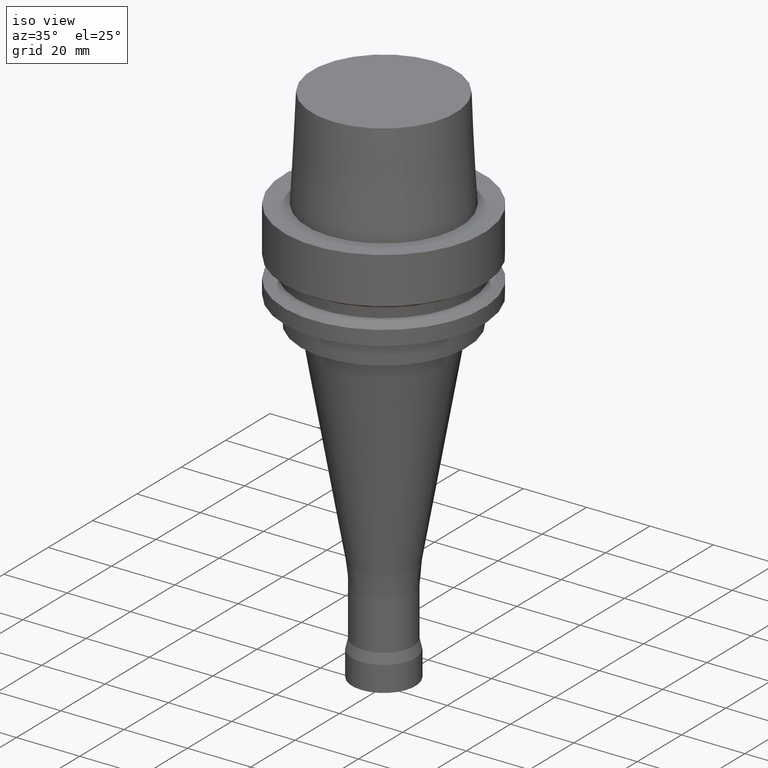
[diagram: clean part render]
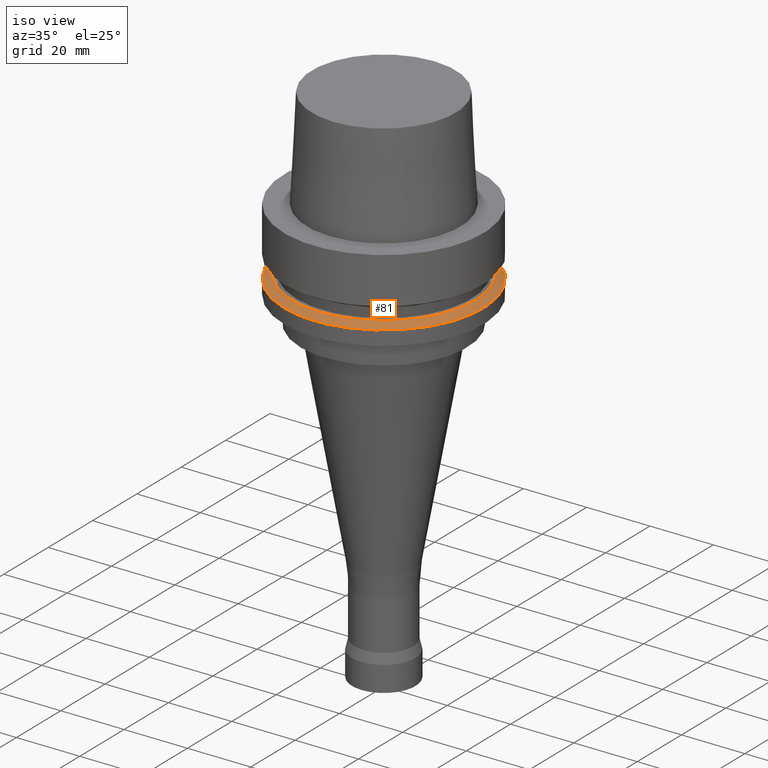
[diagram: same view with one face highlighted and labeled with its STEP entity id]
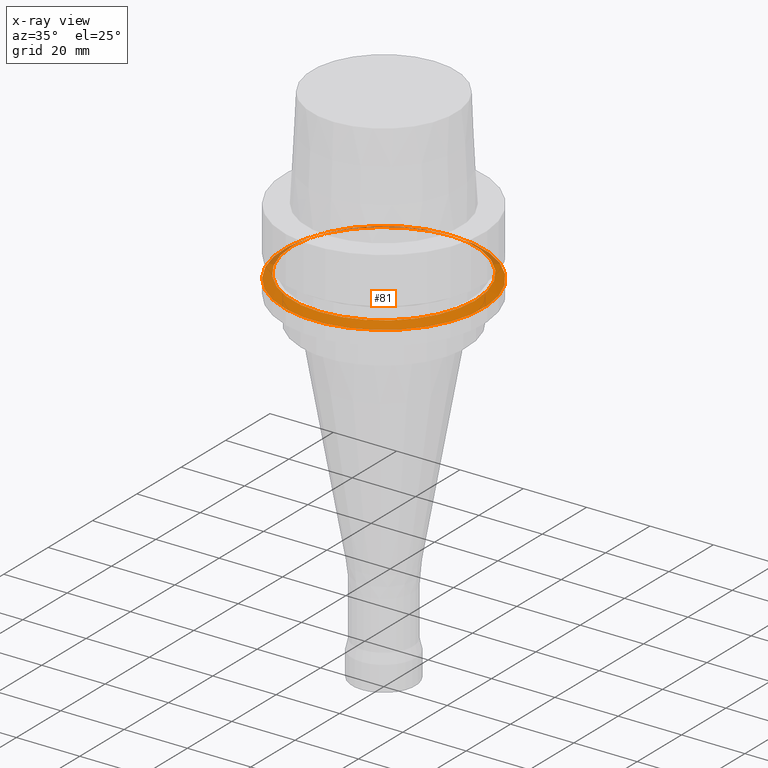
[diagram: x-ray of the same camera — body ghosted, the highlighted face saturated]
A machine part, iso view. The second image highlights one B-rep face of the part: STEP entity #81.
The next image is the same camera in x-ray: the body ghosted, the highlighted face saturated — about 10% of this face is hidden behind the body in this view.
In plain terms, the highlighted conical surface has half-angle 60 deg.
Its self-contained STEP definition (entity closure, byte-faithful):
#81=ADVANCED_FACE('',(#114,#115),#116,.T.);
#114=FACE_BOUND('',#172,.T.);
#115=FACE_BOUND('',#173,.T.);
#116=CONICAL_SURFACE('',#174,30.19879763,1.04719755326565);
#172=EDGE_LOOP('',(#242));
#173=EDGE_LOOP('',(#243));
#174=AXIS2_PLACEMENT_3D('',#244,#245,#246);
#242=ORIENTED_EDGE('',*,*,#317,.F.);
#243=ORIENTED_EDGE('',*,*,#316,.T.);
#244=CARTESIAN_POINT('',(1.26299352357262E-015,2.52598704714523E-015,-20.626249535));
#245=DIRECTION('',(6.12323399573677E-017,1.22464679914735E-016,-1.0));
#246=DIRECTION('',(-1.23259516440783E-032,1.0,1.22464679914735E-016));
#316=EDGE_CURVE('',#341,#341,#342,.T.);
#317=EDGE_CURVE('',#343,#343,#344,.T.);
#341=VERTEX_POINT('',#379);
#342=CIRCLE('',#380,28.89759526);
#343=VERTEX_POINT('',#381);
#344=CIRCLE('',#382,31.5);
#379=CARTESIAN_POINT('',(1.21699275665268E-015,28.89759526,-19.875));
#380=AXIS2_PLACEMENT_3D('',#423,#424,#425);
#381=CARTESIAN_POINT('',(1.30899429049255E-015,31.5,-21.37749907));
#382=AXIS2_PLACEMENT_3D('',#426,#427,#428);
#423=CARTESIAN_POINT('',(1.21699275665268E-015,2.43398551330536E-015,-19.875));
#424=DIRECTION('',(6.12323399573677E-017,1.22464679914735E-016,-1.0));
#425=DIRECTION('',(-1.23259516440783E-032,1.0,1.22464679914735E-016));
#426=CARTESIAN_POINT('',(1.30899429049255E-015,2.6179885809851E-015,-21.37749907));
#427=DIRECTION('',(6.12323399573677E-017,1.22464679914735E-016,-1.0));
#428=DIRECTION('',(-1.23259516440783E-032,1.0,1.22464679914735E-016));